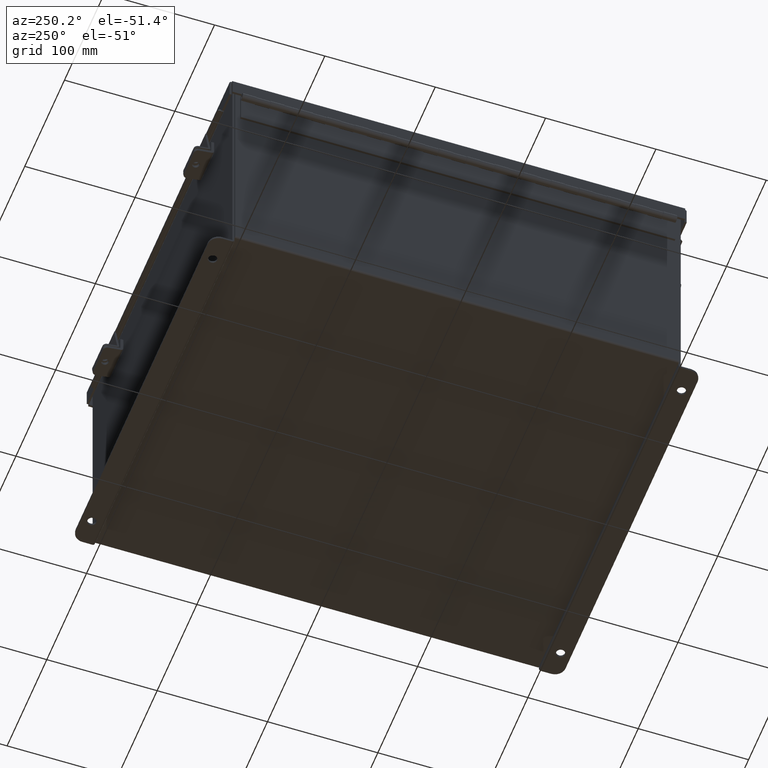
[diagram: clean part render]
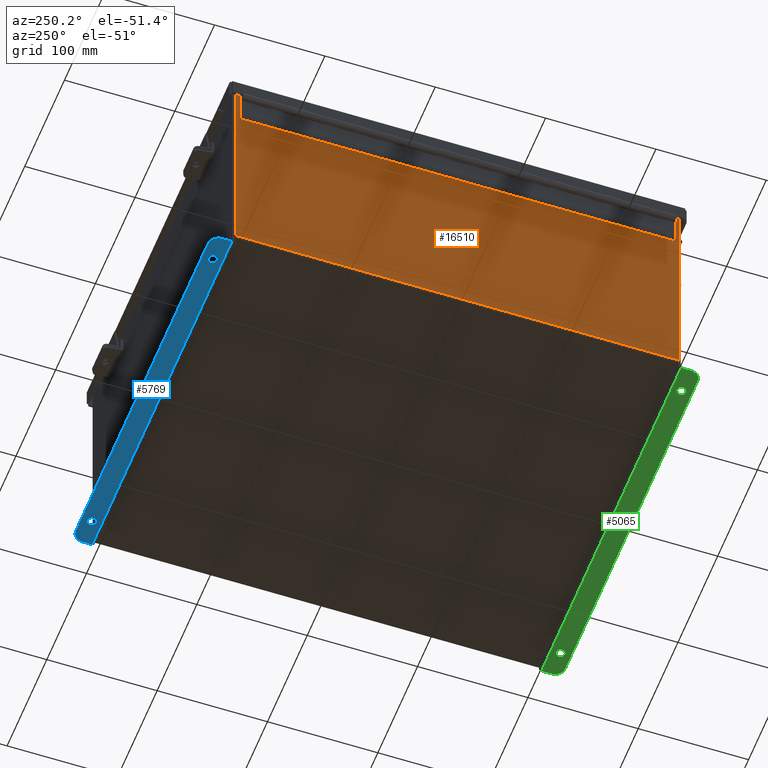
[diagram: same view with three faces highlighted in distinct colors, each labeled with its STEP entity id]
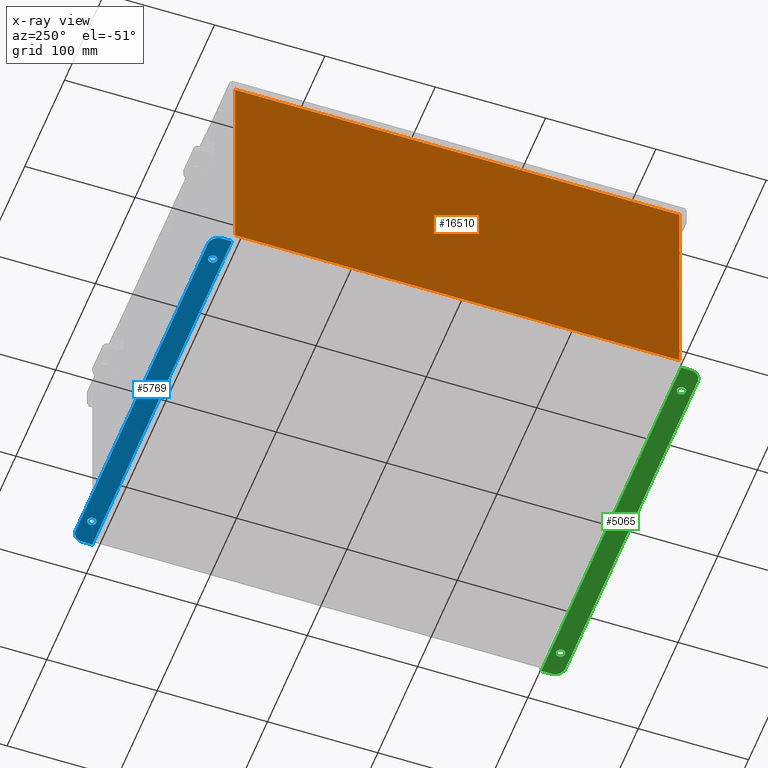
[diagram: x-ray of the same camera — body ghosted, the three highlighted faces saturated]
A machine part, auxiliary view with three faces highlighted in distinct colors.
The next image is the same camera in x-ray (body ghosted, the three faces saturated) — at least one of them is partly hidden behind the body in this view.
Their STEP definitions:

[orange] entity #16510 — the highlighted planar face has unit normal (1, 0, 0).
#1614 = EDGE_CURVE ( 'NONE', #5121, #9885, #9811, .T. ) ;
#1796 = EDGE_CURVE ( 'NONE', #5121, #19964, #2296, .T. ) ;
#2280 = CARTESIAN_POINT ( 'NONE',  ( -7.000000000000000000, 7.925300000000000900, 0.01299999999999984300 ) ) ;
#2296 = LINE ( 'NONE', #7230, #13686 ) ;
#2659 = EDGE_LOOP ( 'NONE', ( #9644, #17247, #19505, #17199 ) ) ;
#2927 = CARTESIAN_POINT ( 'NONE',  ( -7.000000000000026600, 7.925299999999998200, 7.837599999999999200 ) ) ;
#2950 = CARTESIAN_POINT ( 'NONE',  ( -7.000000000000026600, -7.925299999999994700, 7.837599999999999200 ) ) ;
#3356 = CARTESIAN_POINT ( 'NONE',  ( -7.000000000000000000, 7.925300000000000900, -2.462078004289917300E-014 ) ) ;
#3601 = EDGE_CURVE ( 'NONE', #8566, #19964, #4621, .T. ) ;
#3644 = VECTOR ( 'NONE', #4128, 39.37007874015748100 ) ;
#4128 = DIRECTION ( 'NONE',  ( 3.479795166820706300E-015, 0.0000000000000000000, -1.000000000000000000 ) ) ;
#4218 = VECTOR ( 'NONE', #14269, 39.37007874015748100 ) ;
#4621 = LINE ( 'NONE', #3356, #3644 ) ;
#4632 = FACE_OUTER_BOUND ( 'NONE', #2659, .T. ) ;
#5121 = VERTEX_POINT ( 'NONE', #10118 ) ;
#5657 = DIRECTION ( 'NONE',  ( 3.479795166820706300E-015, 0.0000000000000000000, -1.000000000000000000 ) ) ;
#7230 = CARTESIAN_POINT ( 'NONE',  ( -7.000000000000000000, 7.925300000000000900, 0.01299999999999984300 ) ) ;
#7672 = VECTOR ( 'NONE', #10741, 39.37007874015748100 ) ;
#8566 = VERTEX_POINT ( 'NONE', #2927 ) ;
#9644 = ORIENTED_EDGE ( 'NONE', *, *, #19597, .T. ) ;
#9668 = CARTESIAN_POINT ( 'NONE',  ( -7.000000000000000000, -7.925299999999997300, -2.351950382045326500E-014 ) ) ;
#9811 = LINE ( 'NONE', #9668, #4218 ) ;
#9885 = VERTEX_POINT ( 'NONE', #14959 ) ;
#10018 = DIRECTION ( 'NONE',  ( -0.0000000000000000000, 1.000000000000000000, -0.0000000000000000000 ) ) ;
#10118 = CARTESIAN_POINT ( 'NONE',  ( -7.000000000000000000, -7.925299999999997300, 0.01299999999999984300 ) ) ;
#10258 = DIRECTION ( 'NONE',  ( 1.000000000000000000, 0.0000000000000000000, 3.479795166820706300E-015 ) ) ;
#10741 = DIRECTION ( 'NONE',  ( 0.0000000000000000000, 1.000000000000000000, 0.0000000000000000000 ) ) ;
#13383 = CARTESIAN_POINT ( 'NONE',  ( -7.000000000000000000, 0.0000000000000000000, -2.462078004289917300E-014 ) ) ;
#13686 = VECTOR ( 'NONE', #10018, 39.37007874015748100 ) ;
#14269 = DIRECTION ( 'NONE',  ( -3.479795166820706300E-015, 1.391918066728282600E-016, 1.000000000000000000 ) ) ;
#14948 = PLANE ( 'NONE',  #17149 ) ;
#14959 = CARTESIAN_POINT ( 'NONE',  ( -7.000000000000026600, -7.925299999999992900, 7.837599999999999200 ) ) ;
#15949 = LINE ( 'NONE', #2950, #7672 ) ;
#16510 = ADVANCED_FACE ( 'NONE', ( #4632 ), #14948, .F. ) ;
#17149 = AXIS2_PLACEMENT_3D ( 'NONE', #13383, #10258, #5657 ) ;
#17199 = ORIENTED_EDGE ( 'NONE', *, *, #1614, .T. ) ;
#17247 = ORIENTED_EDGE ( 'NONE', *, *, #3601, .T. ) ;
#19505 = ORIENTED_EDGE ( 'NONE', *, *, #1796, .F. ) ;
#19597 = EDGE_CURVE ( 'NONE', #9885, #8566, #15949, .T. ) ;
#19964 = VERTEX_POINT ( 'NONE', #2280 ) ;

[blue] entity #5769 — the highlighted planar face has unit normal (0, 0, 1).
#578 = EDGE_CURVE ( 'NONE', #3205, #8032, #3426, .T. ) ;
#1065 = DIRECTION ( 'NONE',  ( 0.0000000000000000000, -3.702694488566362300E-015, -1.000000000000000000 ) ) ;
#1441 = FACE_BOUND ( 'NONE', #19491, .T. ) ;
#1581 = EDGE_CURVE ( 'NONE', #13970, #2413, #13450, .T. ) ;
#1746 = VERTEX_POINT ( 'NONE', #19042 ) ;
#2057 = CARTESIAN_POINT ( 'NONE',  ( 5.987799999999998200, 0.3627999999999997300, -4.187000000000002100 ) ) ;
#2105 = CARTESIAN_POINT ( 'NONE',  ( 6.925299999999998200, 0.01300000000000010700, -4.187000000000001200 ) ) ;
#2413 = VERTEX_POINT ( 'NONE', #9151 ) ;
#3094 = CARTESIAN_POINT ( 'NONE',  ( -5.987800000000000000, 0.2067999999999996000, -4.187000000000001200 ) ) ;
#3205 = VERTEX_POINT ( 'NONE', #8696 ) ;
#3424 = DIRECTION ( 'NONE',  ( 0.0000000000000000000, 1.000000000000000000, -3.502369222646487000E-015 ) ) ;
#3426 = LINE ( 'NONE', #12388, #7055 ) ;
#3629 = DIRECTION ( 'NONE',  ( -0.0000000000000000000, -3.702694488566362300E-015, -1.000000000000000000 ) ) ;
#3862 = DIRECTION ( 'NONE',  ( 0.0000000000000000000, 3.702694488566362300E-015, 1.000000000000000000 ) ) ;
#4086 = ORIENTED_EDGE ( 'NONE', *, *, #8514, .F. ) ;
#4204 = ORIENTED_EDGE ( 'NONE', *, *, #11842, .T. ) ;
#4460 = DIRECTION ( 'NONE',  ( -0.0000000000000000000, -3.702694488566362300E-015, -1.000000000000000000 ) ) ;
#4748 = DIRECTION ( 'NONE',  ( 0.0000000000000000000, 1.000000000000000000, -3.702694488566362300E-015 ) ) ;
#5060 = EDGE_LOOP ( 'NONE', ( #4204, #7793, #13457, #18897, #10773, #18181 ) ) ;
#5187 = AXIS2_PLACEMENT_3D ( 'NONE', #16860, #7536, #18429 ) ;
#5216 = VERTEX_POINT ( 'NONE', #19668 ) ;
#5546 = FACE_OUTER_BOUND ( 'NONE', #5060, .T. ) ;
#5620 = ORIENTED_EDGE ( 'NONE', *, *, #1581, .F. ) ;
#5753 = VECTOR ( 'NONE', #11349, 39.37007874015748100 ) ;
#5769 = ADVANCED_FACE ( 'NONE', ( #13309, #1441, #5546 ), #19390, .F. ) ;
#6838 = VERTEX_POINT ( 'NONE', #10220 ) ;
#6860 = ORIENTED_EDGE ( 'NONE', *, *, #18104, .F. ) ;
#7055 = VECTOR ( 'NONE', #4748, 39.37007874015748100 ) ;
#7136 = VERTEX_POINT ( 'NONE', #3094 ) ;
#7440 = DIRECTION ( 'NONE',  ( 0.0000000000000000000, -3.702694488566362300E-015, -1.000000000000000000 ) ) ;
#7536 = DIRECTION ( 'NONE',  ( 0.0000000000000000000, -3.702694488566362300E-015, -1.000000000000000000 ) ) ;
#7550 = AXIS2_PLACEMENT_3D ( 'NONE', #13754, #4460, #15321 ) ;
#7779 = VECTOR ( 'NONE', #9187, 39.37007874015748100 ) ;
#7793 = ORIENTED_EDGE ( 'NONE', *, *, #11312, .T. ) ;
#8032 = VERTEX_POINT ( 'NONE', #15722 ) ;
#8494 = CARTESIAN_POINT ( 'NONE',  ( 5.987799999999998200, 0.3627999999999997300, -4.187000000000002100 ) ) ;
#8514 = EDGE_CURVE ( 'NONE', #7136, #6838, #9152, .T. ) ;
#8626 = ORIENTED_EDGE ( 'NONE', *, *, #10405, .F. ) ;
#8696 = CARTESIAN_POINT ( 'NONE',  ( -6.925299999999999100, 0.01300000000000010700, -4.187000000000001200 ) ) ;
#8922 = VERTEX_POINT ( 'NONE', #17323 ) ;
#9151 = CARTESIAN_POINT ( 'NONE',  ( 5.987799999999998200, 0.2067999999999996000, -4.187000000000001200 ) ) ;
#9152 = CIRCLE ( 'NONE', #5187, 0.1560000000000001900 ) ;
#9187 = DIRECTION ( 'NONE',  ( 1.000000000000000000, 0.0000000000000000000, -0.0000000000000000000 ) ) ;
#9878 = LINE ( 'NONE', #2105, #5753 ) ;
#9962 = CARTESIAN_POINT ( 'NONE',  ( 6.925299999999998200, -1.529834876451987200E-014, -4.187000000000001200 ) ) ;
#10050 = DIRECTION ( 'NONE',  ( 0.0000000000000000000, 1.000000000000000000, -3.502369222646487000E-015 ) ) ;
#10198 = LINE ( 'NONE', #9962, #18017 ) ;
#10220 = CARTESIAN_POINT ( 'NONE',  ( -5.987800000000000000, 0.5187999999999999300, -4.187000000000002900 ) ) ;
#10325 = CARTESIAN_POINT ( 'NONE',  ( -5.987800000000000000, 0.3627999999999997300, -4.187000000000002100 ) ) ;
#10405 = EDGE_CURVE ( 'NONE', #2413, #13970, #18823, .T. ) ;
#10773 = ORIENTED_EDGE ( 'NONE', *, *, #578, .T. ) ;
#11112 = EDGE_LOOP ( 'NONE', ( #6860, #4086 ) ) ;
#11312 = EDGE_CURVE ( 'NONE', #12750, #1746, #11938, .T. ) ;
#11349 = DIRECTION ( 'NONE',  ( 1.000000000000000000, 3.944735958968223300E-017, -1.460615209412118400E-031 ) ) ;
#11505 = CARTESIAN_POINT ( 'NONE',  ( 6.550299999999998200, 0.7378000000000000100, -4.187000000000003800 ) ) ;
#11528 = DIRECTION ( 'NONE',  ( 0.0000000000000000000, -1.000000000000000000, 3.702694488566362300E-015 ) ) ;
#11842 = EDGE_CURVE ( 'NONE', #8922, #12750, #16070, .T. ) ;
#11879 = DIRECTION ( 'NONE',  ( 0.0000000000000000000, 1.000000000000000000, -3.502369222646487000E-015 ) ) ;
#11938 = CIRCLE ( 'NONE', #7550, 0.3750000000000000600 ) ;
#12139 = EDGE_CURVE ( 'NONE', #1746, #5216, #10198, .T. ) ;
#12388 = CARTESIAN_POINT ( 'NONE',  ( -6.925300000000000900, -1.529834876451987200E-014, -4.187000000000001200 ) ) ;
#12750 = VERTEX_POINT ( 'NONE', #11505 ) ;
#12930 = CARTESIAN_POINT ( 'NONE',  ( -6.550299999999998200, 0.3627999999999997300, -4.187000000000002100 ) ) ;
#13148 = CARTESIAN_POINT ( 'NONE',  ( 0.0000000000000000000, -1.529834876451987200E-014, -4.187000000000001200 ) ) ;
#13309 = FACE_BOUND ( 'NONE', #11112, .T. ) ;
#13450 = CIRCLE ( 'NONE', #16959, 0.1560000000000001900 ) ;
#13457 = ORIENTED_EDGE ( 'NONE', *, *, #12139, .T. ) ;
#13754 = CARTESIAN_POINT ( 'NONE',  ( 6.550299999999998200, 0.3627999999999997300, -4.187000000000002100 ) ) ;
#13851 = CARTESIAN_POINT ( 'NONE',  ( 0.0000000000000000000, 0.7378000000000000100, -4.187000000000003800 ) ) ;
#13970 = VERTEX_POINT ( 'NONE', #14781 ) ;
#14487 = DIRECTION ( 'NONE',  ( 0.0000000000000000000, -1.000000000000000000, 4.370956789862820400E-015 ) ) ;
#14713 = DIRECTION ( 'NONE',  ( 0.0000000000000000000, -1.000000000000000000, 3.702694488566362300E-015 ) ) ;
#14781 = CARTESIAN_POINT ( 'NONE',  ( 5.987799999999998200, 0.5187999999999999300, -4.187000000000002900 ) ) ;
#14802 = AXIS2_PLACEMENT_3D ( 'NONE', #10325, #1065, #11879 ) ;
#15321 = DIRECTION ( 'NONE',  ( 0.0000000000000000000, -1.000000000000000000, 4.370956789862820400E-015 ) ) ;
#15722 = CARTESIAN_POINT ( 'NONE',  ( -6.925300000000000900, 0.3627999999999997300, -4.187000000000002100 ) ) ;
#16070 = LINE ( 'NONE', #13851, #7779 ) ;
#16506 = CIRCLE ( 'NONE', #14802, 0.1560000000000001900 ) ;
#16860 = CARTESIAN_POINT ( 'NONE',  ( -5.987800000000000000, 0.3627999999999997300, -4.187000000000002100 ) ) ;
#16959 = AXIS2_PLACEMENT_3D ( 'NONE', #2057, #7440, #3424 ) ;
#17323 = CARTESIAN_POINT ( 'NONE',  ( -6.550299999999998200, 0.7378000000000000100, -4.187000000000003800 ) ) ;
#18017 = VECTOR ( 'NONE', #11528, 39.37007874015748100 ) ;
#18104 = EDGE_CURVE ( 'NONE', #6838, #7136, #16506, .T. ) ;
#18174 = CIRCLE ( 'NONE', #19955, 0.3750000000000000600 ) ;
#18181 = ORIENTED_EDGE ( 'NONE', *, *, #19205, .T. ) ;
#18429 = DIRECTION ( 'NONE',  ( 0.0000000000000000000, 1.000000000000000000, -3.502369222646487000E-015 ) ) ;
#18488 = AXIS2_PLACEMENT_3D ( 'NONE', #8494, #19408, #10050 ) ;
#18823 = CIRCLE ( 'NONE', #18488, 0.1560000000000001900 ) ;
#18897 = ORIENTED_EDGE ( 'NONE', *, *, #19208, .F. ) ;
#19042 = CARTESIAN_POINT ( 'NONE',  ( 6.925299999999998200, 0.3627999999999997300, -4.187000000000002100 ) ) ;
#19205 = EDGE_CURVE ( 'NONE', #8032, #8922, #18174, .T. ) ;
#19208 = EDGE_CURVE ( 'NONE', #3205, #5216, #9878, .T. ) ;
#19390 = PLANE ( 'NONE',  #19513 ) ;
#19408 = DIRECTION ( 'NONE',  ( 0.0000000000000000000, -3.702694488566362300E-015, -1.000000000000000000 ) ) ;
#19491 = EDGE_LOOP ( 'NONE', ( #5620, #8626 ) ) ;
#19513 = AXIS2_PLACEMENT_3D ( 'NONE', #13148, #3862, #14713 ) ;
#19668 = CARTESIAN_POINT ( 'NONE',  ( 6.925299999999998200, 0.01300000000000010700, -4.187000000000001200 ) ) ;
#19955 = AXIS2_PLACEMENT_3D ( 'NONE', #12930, #3629, #14487 ) ;

[green] entity #5065 — the highlighted planar face has unit normal (0, -0, 1).
#242 = VECTOR ( 'NONE', #6505, 39.37007874015748100 ) ;
#343 = CARTESIAN_POINT ( 'NONE',  ( -5.987800000000000000, 0.3627999999999997300, -4.186999999999996700 ) ) ;
#553 = AXIS2_PLACEMENT_3D ( 'NONE', #15937, #6620, #17504 ) ;
#734 = DIRECTION ( 'NONE',  ( -4.919856193148104900E-031, -1.000000000000000000, 3.702694488566362300E-015 ) ) ;
#992 = DIRECTION ( 'NONE',  ( 1.000000000000000000, 4.910036603141682400E-031, 0.0000000000000000000 ) ) ;
#1299 = DIRECTION ( 'NONE',  ( 0.0000000000000000000, -3.362274453740631800E-015, -1.000000000000000000 ) ) ;
#1529 = VERTEX_POINT ( 'NONE', #17733 ) ;
#1597 = DIRECTION ( 'NONE',  ( 0.0000000000000000000, -1.000000000000000000, 4.370956789862820400E-015 ) ) ;
#1860 = CARTESIAN_POINT ( 'NONE',  ( -5.987800000000000000, 0.3627999999999997300, -4.186999999999996700 ) ) ;
#1895 = DIRECTION ( 'NONE',  ( 0.0000000000000000000, 1.000000000000000000, -3.502369222646487000E-015 ) ) ;
#2004 = ORIENTED_EDGE ( 'NONE', *, *, #17458, .F. ) ;
#2128 = DIRECTION ( 'NONE',  ( 0.0000000000000000000, -3.362274453740631800E-015, -1.000000000000000000 ) ) ;
#2519 = ORIENTED_EDGE ( 'NONE', *, *, #5576, .T. ) ;
#2832 = AXIS2_PLACEMENT_3D ( 'NONE', #1860, #12673, #3391 ) ;
#2848 = CARTESIAN_POINT ( 'NONE',  ( -5.987800000000000000, 0.2067999999999996000, -4.186999999999995800 ) ) ;
#3029 = CIRCLE ( 'NONE', #553, 0.3750000000000000600 ) ;
#3188 = CARTESIAN_POINT ( 'NONE',  ( -6.550299999999998200, 0.7378000000000086700, -4.186999999999998500 ) ) ;
#3195 = EDGE_CURVE ( 'NONE', #12695, #5488, #18761, .T. ) ;
#3391 = DIRECTION ( 'NONE',  ( 0.0000000000000000000, 1.000000000000000000, -3.502369222646487000E-015 ) ) ;
#3747 = CARTESIAN_POINT ( 'NONE',  ( -5.987800000000000000, 0.5187999999999999300, -4.186999999999996700 ) ) ;
#3964 = CARTESIAN_POINT ( 'NONE',  ( 6.925299999999998200, 0.01300000000000120000, -4.186999999999995800 ) ) ;
#4356 = FACE_BOUND ( 'NONE', #6848, .T. ) ;
#4428 = AXIS2_PLACEMENT_3D ( 'NONE', #10555, #1299, #12117 ) ;
#4960 = CARTESIAN_POINT ( 'NONE',  ( -6.925300000000000900, -6.556435184794231700E-015, -4.187000000000000300 ) ) ;
#5065 = ADVANCED_FACE ( 'NONE', ( #16756, #4356, #12587 ), #8440, .F. ) ;
#5195 = EDGE_CURVE ( 'NONE', #5488, #20146, #18968, .T. ) ;
#5265 = AXIS2_PLACEMENT_3D ( 'NONE', #17694, #9929, #1597 ) ;
#5349 = VERTEX_POINT ( 'NONE', #16787 ) ;
#5488 = VERTEX_POINT ( 'NONE', #3188 ) ;
#5569 = EDGE_CURVE ( 'NONE', #6024, #14161, #16740, .T. ) ;
#5576 = EDGE_CURVE ( 'NONE', #1529, #12695, #12572, .T. ) ;
#5695 = EDGE_CURVE ( 'NONE', #10910, #8316, #11106, .T. ) ;
#6024 = VERTEX_POINT ( 'NONE', #3747 ) ;
#6044 = EDGE_CURVE ( 'NONE', #6549, #5349, #17719, .T. ) ;
#6505 = DIRECTION ( 'NONE',  ( 4.919856193148104900E-031, 1.000000000000000000, -3.702694488566362300E-015 ) ) ;
#6549 = VERTEX_POINT ( 'NONE', #17315 ) ;
#6620 = DIRECTION ( 'NONE',  ( -0.0000000000000000000, -3.702694488566362300E-015, -1.000000000000000000 ) ) ;
#6707 = AXIS2_PLACEMENT_3D ( 'NONE', #16206, #19354, #9983 ) ;
#6848 = EDGE_LOOP ( 'NONE', ( #18561, #12819 ) ) ;
#7251 = EDGE_CURVE ( 'NONE', #14161, #6024, #9621, .T. ) ;
#8316 = VERTEX_POINT ( 'NONE', #10182 ) ;
#8330 = ORIENTED_EDGE ( 'NONE', *, *, #6044, .T. ) ;
#8440 = PLANE ( 'NONE',  #6707 ) ;
#9621 = CIRCLE ( 'NONE', #17546, 0.1560000000000001900 ) ;
#9647 = EDGE_CURVE ( 'NONE', #20146, #6549, #3029, .T. ) ;
#9929 = DIRECTION ( 'NONE',  ( -0.0000000000000000000, -3.702694488566362300E-015, -1.000000000000000000 ) ) ;
#9983 = DIRECTION ( 'NONE',  ( -4.919856193148104900E-031, -1.000000000000000000, 3.702694488566362300E-015 ) ) ;
#10092 = AXIS2_PLACEMENT_3D ( 'NONE', #11377, #2128, #12954 ) ;
#10182 = CARTESIAN_POINT ( 'NONE',  ( 5.987799999999998200, 0.2068000000000083400, -4.187000000000000300 ) ) ;
#10555 = CARTESIAN_POINT ( 'NONE',  ( 5.987799999999998200, 0.3628000000000085000, -4.187000000000001200 ) ) ;
#10653 = VECTOR ( 'NONE', #992, 39.37007874015748100 ) ;
#10910 = VERTEX_POINT ( 'NONE', #19049 ) ;
#11106 = CIRCLE ( 'NONE', #10092, 0.1560000000000001900 ) ;
#11139 = DIRECTION ( 'NONE',  ( 0.0000000000000000000, -3.362274453740631800E-015, -1.000000000000000000 ) ) ;
#11280 = EDGE_CURVE ( 'NONE', #8316, #10910, #16588, .T. ) ;
#11377 = CARTESIAN_POINT ( 'NONE',  ( 5.987799999999998200, 0.3628000000000085000, -4.187000000000001200 ) ) ;
#11663 = ORIENTED_EDGE ( 'NONE', *, *, #5569, .F. ) ;
#12117 = DIRECTION ( 'NONE',  ( 0.0000000000000000000, 1.000000000000000000, -3.502369222646487000E-015 ) ) ;
#12549 = VECTOR ( 'NONE', #734, 39.37007874015748100 ) ;
#12572 = LINE ( 'NONE', #4960, #242 ) ;
#12587 = FACE_OUTER_BOUND ( 'NONE', #13674, .T. ) ;
#12673 = DIRECTION ( 'NONE',  ( 0.0000000000000000000, -3.362274453740631800E-015, -1.000000000000000000 ) ) ;
#12695 = VERTEX_POINT ( 'NONE', #12936 ) ;
#12819 = ORIENTED_EDGE ( 'NONE', *, *, #11280, .F. ) ;
#12936 = CARTESIAN_POINT ( 'NONE',  ( -6.925300000000000900, 0.3628000000000085000, -4.186999999999996700 ) ) ;
#12954 = DIRECTION ( 'NONE',  ( 0.0000000000000000000, 1.000000000000000000, -3.502369222646487000E-015 ) ) ;
#13255 = DIRECTION ( 'NONE',  ( 1.000000000000000000, 4.910036603141682400E-031, -0.0000000000000000000 ) ) ;
#13674 = EDGE_LOOP ( 'NONE', ( #2519, #19548, #16682, #14867, #8330, #2004 ) ) ;
#13827 = VECTOR ( 'NONE', #13255, 39.37007874015748100 ) ;
#13832 = ORIENTED_EDGE ( 'NONE', *, *, #7251, .F. ) ;
#14161 = VERTEX_POINT ( 'NONE', #2848 ) ;
#14867 = ORIENTED_EDGE ( 'NONE', *, *, #9647, .T. ) ;
#15937 = CARTESIAN_POINT ( 'NONE',  ( 6.550299999999998200, 0.3627999999999997300, -4.186999999999996700 ) ) ;
#16206 = CARTESIAN_POINT ( 'NONE',  ( -2.035385365534024800E-024, -6.556435184794231700E-015, -4.187000000000000300 ) ) ;
#16588 = CIRCLE ( 'NONE', #4428, 0.1560000000000001900 ) ;
#16682 = ORIENTED_EDGE ( 'NONE', *, *, #5195, .T. ) ;
#16722 = CARTESIAN_POINT ( 'NONE',  ( 6.550299999999998200, 0.7378000000000000100, -4.187000000000002900 ) ) ;
#16740 = CIRCLE ( 'NONE', #2832, 0.1560000000000001900 ) ;
#16756 = FACE_BOUND ( 'NONE', #19808, .T. ) ;
#16787 = CARTESIAN_POINT ( 'NONE',  ( 6.925299999999998200, 0.01300000000000010700, -4.186999999999995800 ) ) ;
#17315 = CARTESIAN_POINT ( 'NONE',  ( 6.925299999999998200, 0.3627999999999997300, -4.187000000000001200 ) ) ;
#17458 = EDGE_CURVE ( 'NONE', #1529, #5349, #17994, .T. ) ;
#17504 = DIRECTION ( 'NONE',  ( 0.0000000000000000000, -1.000000000000000000, 4.370956789862820400E-015 ) ) ;
#17546 = AXIS2_PLACEMENT_3D ( 'NONE', #343, #11139, #1895 ) ;
#17694 = CARTESIAN_POINT ( 'NONE',  ( -6.550299999999998200, 0.3628000000000085000, -4.187000000000001200 ) ) ;
#17719 = LINE ( 'NONE', #19341, #12549 ) ;
#17733 = CARTESIAN_POINT ( 'NONE',  ( -6.925299999999999100, 0.01300000000000885000, -4.187000000000000300 ) ) ;
#17994 = LINE ( 'NONE', #3964, #13827 ) ;
#18561 = ORIENTED_EDGE ( 'NONE', *, *, #5695, .F. ) ;
#18761 = CIRCLE ( 'NONE', #5265, 0.3750000000000000600 ) ;
#18968 = LINE ( 'NONE', #19609, #10653 ) ;
#19049 = CARTESIAN_POINT ( 'NONE',  ( 5.987799999999998200, 0.5188000000000087000, -4.187000000000001200 ) ) ;
#19341 = CARTESIAN_POINT ( 'NONE',  ( 6.925299999999998200, -1.420560956705417000E-014, -4.186999999999995800 ) ) ;
#19354 = DIRECTION ( 'NONE',  ( 0.0000000000000000000, 3.702694488566362300E-015, 1.000000000000000000 ) ) ;
#19548 = ORIENTED_EDGE ( 'NONE', *, *, #3195, .T. ) ;
#19609 = CARTESIAN_POINT ( 'NONE',  ( -2.035385365534024800E-024, 0.7378000000000000100, -4.187000000000002900 ) ) ;
#19808 = EDGE_LOOP ( 'NONE', ( #11663, #13832 ) ) ;
#20146 = VERTEX_POINT ( 'NONE', #16722 ) ;